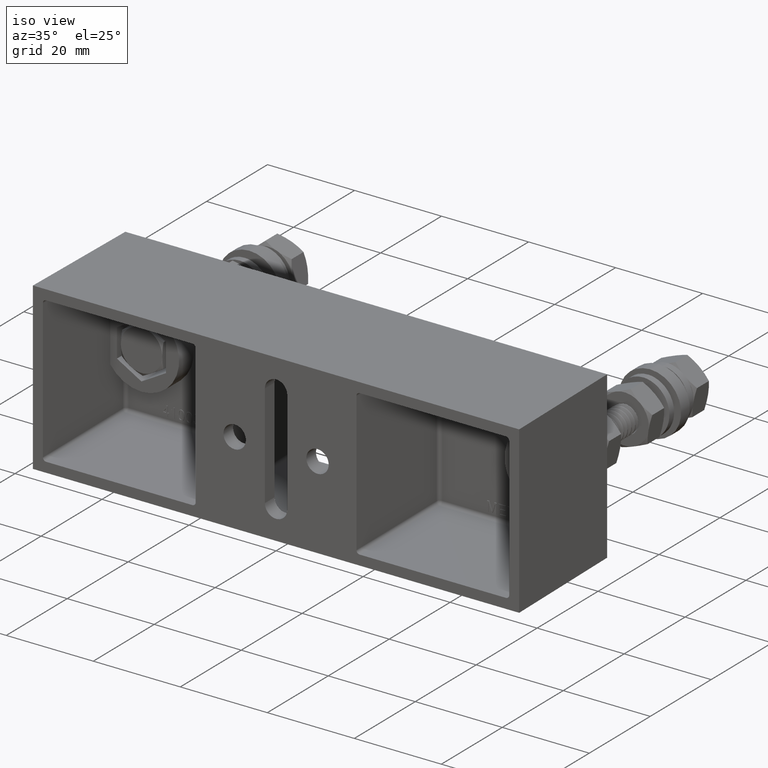
[diagram: clean part render]
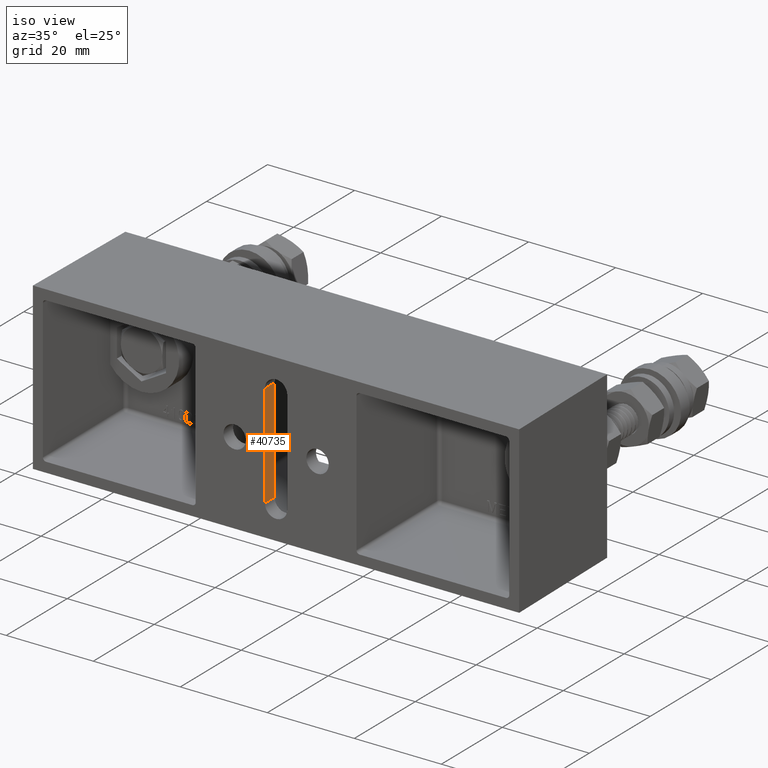
[diagram: same view with one face highlighted and labeled with its STEP entity id]
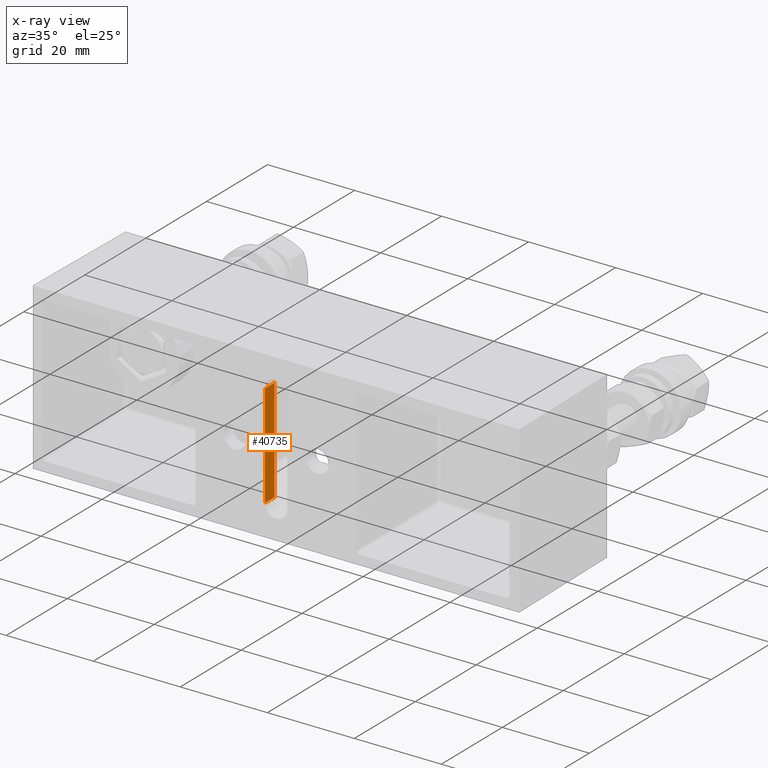
[diagram: x-ray of the same camera — body ghosted, the highlighted face saturated]
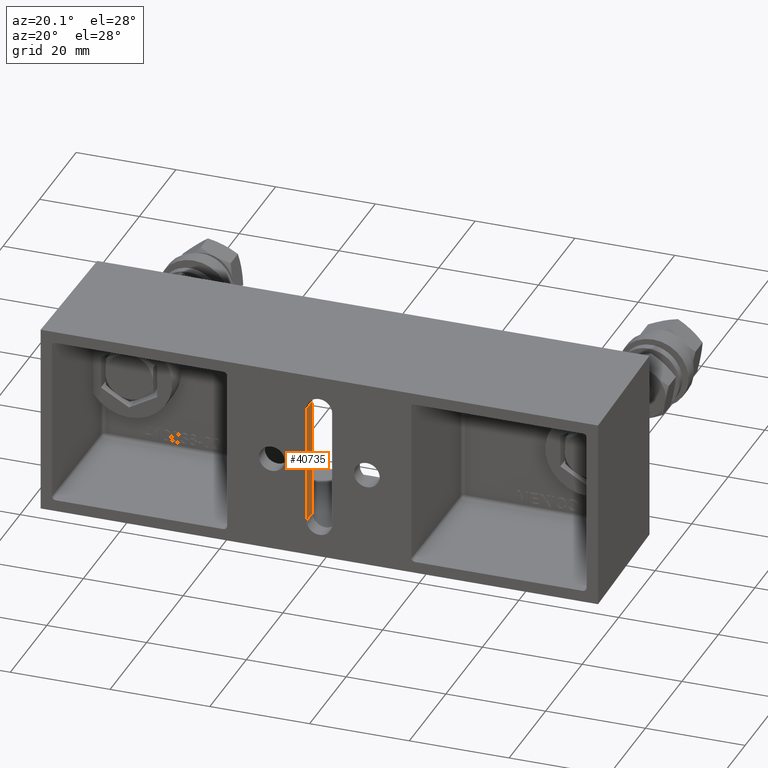
[diagram: same view with one face highlighted and labeled with its STEP entity id]
A machine part, iso view. The second image highlights one B-rep face of the part: STEP entity #40735.
The next image is the same camera in x-ray: the body ghosted, the highlighted face saturated — about 0% of this face is hidden behind the body in this view.
A second angle (auxiliary view) of the same face is appended — the face is thin or edge-on in the first view.
In plain terms, the highlighted planar face has unit normal (-1, 0, 0).
Its self-contained STEP definition (entity closure, byte-faithful):
#3595 = AXIS2_PLACEMENT_3D ( 'NONE', #20393, #54259, #25252 ) ;
#6818 = VECTOR ( 'NONE', #29774, 39.37007874015748100 ) ;
#7195 = CARTESIAN_POINT ( 'NONE',  ( -0.1015000000000001900, 0.0000000000000000000, 0.4685000000000000300 ) ) ;
#7739 = VERTEX_POINT ( 'NONE', #7195 ) ;
#9213 = LINE ( 'NONE', #31626, #59113 ) ;
#17616 = CARTESIAN_POINT ( 'NONE',  ( -0.1015000000000003500, 0.1250000000000000000, -0.4685000000000000300 ) ) ;
#19844 = VECTOR ( 'NONE', #40687, 39.37007874015748100 ) ;
#20081 = VERTEX_POINT ( 'NONE', #51143 ) ;
#20393 = CARTESIAN_POINT ( 'NONE',  ( -0.1015000000000001900, -0.06499999999999998800, 0.4685000000000000300 ) ) ;
#22673 = CARTESIAN_POINT ( 'NONE',  ( -0.1015000000000001900, 0.1250000000000000000, 0.4685000000000000300 ) ) ;
#25252 = DIRECTION ( 'NONE',  ( 1.822203837823014500E-016, 0.0000000000000000000, 1.000000000000000000 ) ) ;
#26386 = LINE ( 'NONE', #22673, #39301 ) ;
#29774 = DIRECTION ( 'NONE',  ( -0.0000000000000000000, 1.000000000000000000, -0.0000000000000000000 ) ) ;
#31626 = CARTESIAN_POINT ( 'NONE',  ( -0.1015000000000002700, 0.0000000000000000000, 0.7499999999999996700 ) ) ;
#32884 = EDGE_CURVE ( 'NONE', #20081, #42181, #43945, .T. ) ;
#32998 = ORIENTED_EDGE ( 'NONE', *, *, #33447, .T. ) ;
#33447 = EDGE_CURVE ( 'NONE', #42181, #60130, #26386, .T. ) ;
#35096 = EDGE_LOOP ( 'NONE', ( #61732, #32998, #47193, #48449 ) ) ;
#36519 = DIRECTION ( 'NONE',  ( 1.822203837823014700E-016, -0.0000000000000000000, 1.000000000000000000 ) ) ;
#39301 = VECTOR ( 'NONE', #51722, 39.37007874015748100 ) ;
#40687 = DIRECTION ( 'NONE',  ( -0.0000000000000000000, 1.000000000000000000, -0.0000000000000000000 ) ) ;
#40735 = ADVANCED_FACE ( 'NONE', ( #56333 ), #58869, .F. ) ;
#41548 = EDGE_CURVE ( 'NONE', #20081, #7739, #9213, .T. ) ;
#42181 = VERTEX_POINT ( 'NONE', #17616 ) ;
#43945 = LINE ( 'NONE', #58910, #6818 ) ;
#45932 = CARTESIAN_POINT ( 'NONE',  ( -0.1015000000000001900, -0.06499999999999998800, 0.4685000000000000300 ) ) ;
#47193 = ORIENTED_EDGE ( 'NONE', *, *, #55813, .F. ) ;
#48449 = ORIENTED_EDGE ( 'NONE', *, *, #41548, .F. ) ;
#51143 = CARTESIAN_POINT ( 'NONE',  ( -0.1015000000000003500, 0.0000000000000000000, -0.4685000000000000300 ) ) ;
#51339 = CARTESIAN_POINT ( 'NONE',  ( -0.1015000000000001900, 0.1250000000000000000, 0.4685000000000000300 ) ) ;
#51722 = DIRECTION ( 'NONE',  ( 1.822203837823014500E-016, -0.0000000000000000000, 1.000000000000000000 ) ) ;
#54259 = DIRECTION ( 'NONE',  ( -1.000000000000000000, 0.0000000000000000000, 1.822203837823014500E-016 ) ) ;
#55813 = EDGE_CURVE ( 'NONE', #7739, #60130, #56896, .T. ) ;
#56333 = FACE_OUTER_BOUND ( 'NONE', #35096, .T. ) ;
#56896 = LINE ( 'NONE', #45932, #19844 ) ;
#58869 = PLANE ( 'NONE',  #3595 ) ;
#58910 = CARTESIAN_POINT ( 'NONE',  ( -0.1015000000000003500, -0.06499999999999998800, -0.4685000000000000300 ) ) ;
#59113 = VECTOR ( 'NONE', #36519, 39.37007874015748100 ) ;
#60130 = VERTEX_POINT ( 'NONE', #51339 ) ;
#61732 = ORIENTED_EDGE ( 'NONE', *, *, #32884, .T. ) ;